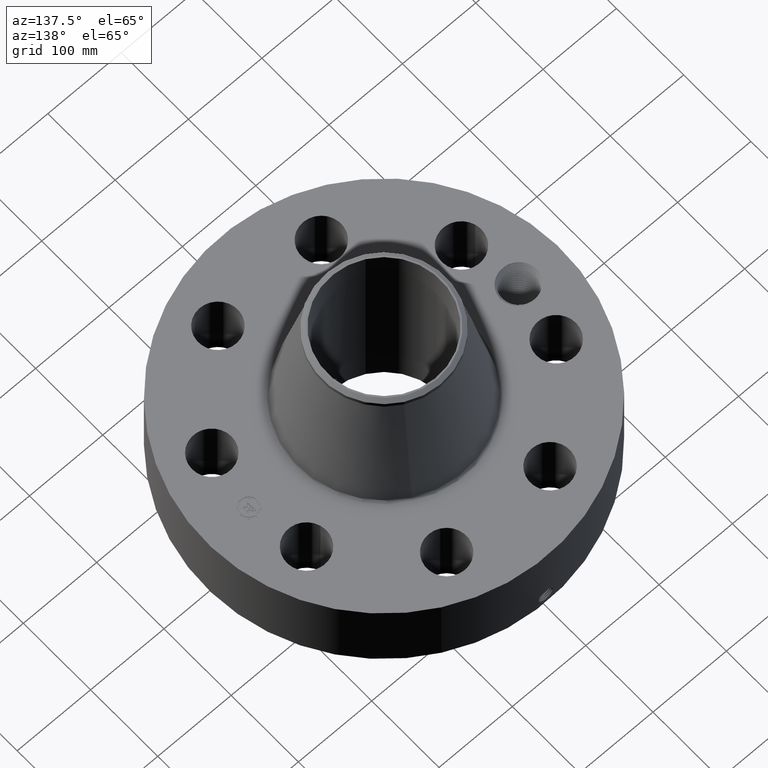
[diagram: clean part render]
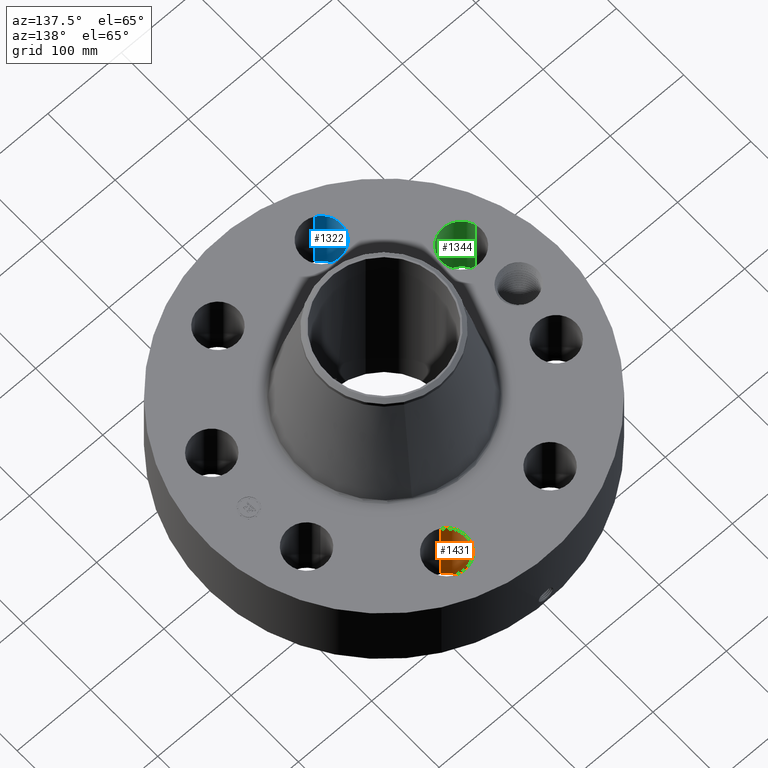
[diagram: same view with three faces highlighted in distinct colors, each labeled with its STEP entity id]
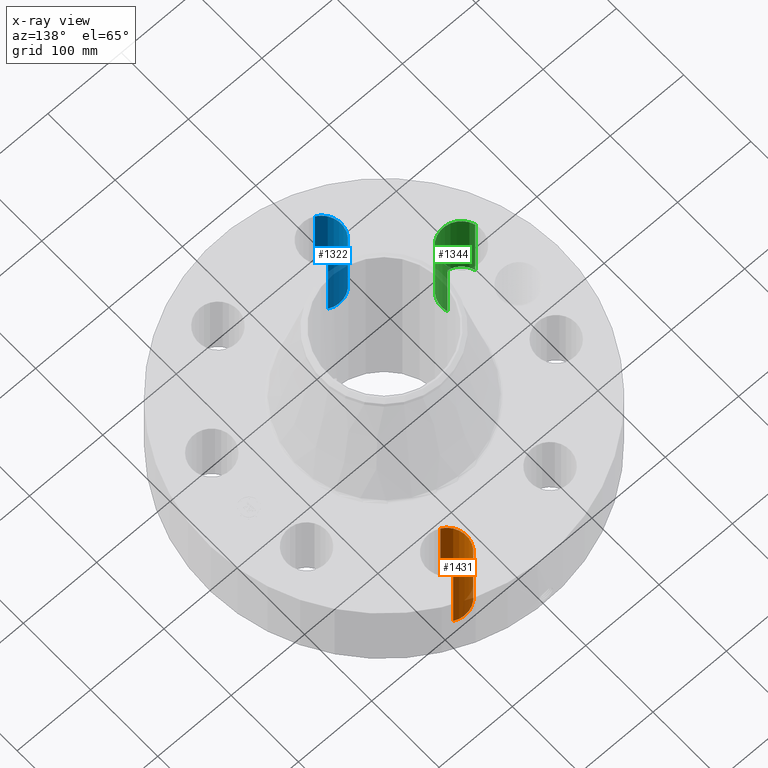
[diagram: x-ray of the same camera — body ghosted, the three highlighted faces saturated]
A machine part, auxiliary view with three faces highlighted in distinct colors.
The next image is the same camera in x-ray (body ghosted, the three faces saturated) — at least one of them is partly hidden behind the body in this view.
Their STEP definitions:

[orange] entity #1431 — the highlighted cylindrical surface (edge-blend (fillet) strip) has radius 26.924 mm, axis along (0, 0, -1).
#370=AXIS2_PLACEMENT_3D('Circle Axis2P3D',#368,#369,$) ;
#708=AXIS2_PLACEMENT_3D('Circle Axis2P3D',#706,#707,$) ;
#1413=AXIS2_PLACEMENT_3D('Cylinder Axis2P3D',#1410,#1411,#1412) ;
#368=CARTESIAN_POINT('Axis2P3D Location',(2.77445488466,6.69812661073,0.250000000001)) ;
#372=CARTESIAN_POINT('Vertex',(2.26626381374,5.76788909513,0.250000000001)) ;
#374=CARTESIAN_POINT('Vertex',(3.28264595558,7.62836412634,0.250000000001)) ;
#701=CARTESIAN_POINT('Vertex',(3.28264595558,7.62836412634,4.50000000002)) ;
#703=CARTESIAN_POINT('Vertex',(2.26626381374,5.76788909513,4.50000000002)) ;
#706=CARTESIAN_POINT('Axis2P3D Location',(2.77445488466,6.69812661073,4.50000000002)) ;
#1410=CARTESIAN_POINT('Axis2P3D Location',(2.77445488466,6.69812661073,4.49606299214)) ;
#1415=CARTESIAN_POINT('Line Origine',(2.26626381374,5.76788909513,2.37500000001)) ;
#1420=CARTESIAN_POINT('Line Origine',(3.28264595558,7.62836412634,2.37500000001)) ;
#369=DIRECTION('Axis2P3D Direction',(0.,0.,-0.0393700787402)) ;
#707=DIRECTION('Axis2P3D Direction',(0.,0.,-0.0393700787402)) ;
#1411=DIRECTION('Axis2P3D Direction',(0.,0.,-0.0393700787402)) ;
#1412=DIRECTION('Axis2P3D XDirection',(0.0188750212049,0.0345504945626,0.)) ;
#1416=DIRECTION('Vector Direction',(0.,0.,-0.0393700787402)) ;
#1421=DIRECTION('Vector Direction',(0.,0.,-0.0393700787402)) ;
#1417=VECTOR('Line Direction',#1416,0.0393700787402) ;
#1422=VECTOR('Line Direction',#1421,0.0393700787402) ;
#1426=ORIENTED_EDGE('',*,*,#1419,.F.) ;
#1427=ORIENTED_EDGE('',*,*,#376,.T.) ;
#1428=ORIENTED_EDGE('',*,*,#1424,.T.) ;
#1429=ORIENTED_EDGE('',*,*,#710,.F.) ;
#1431=ADVANCED_FACE('PartBody',(#1430),#1414,.F.) ;
#371=CIRCLE('generated circle',#370,1.06) ;
#709=CIRCLE('generated circle',#708,1.06) ;
#1414=CYLINDRICAL_SURFACE('generated cylinder',#1413,1.06) ;
#376=EDGE_CURVE('',#373,#375,#371,.T.) ;
#710=EDGE_CURVE('',#704,#702,#709,.T.) ;
#1419=EDGE_CURVE('',#373,#704,#1418,.F.) ;
#1424=EDGE_CURVE('',#375,#702,#1423,.F.) ;
#1425=EDGE_LOOP('',(#1426,#1427,#1428,#1429)) ;
#1430=FACE_OUTER_BOUND('',#1425,.T.) ;
#1418=LINE('Line',#1415,#1417) ;
#1423=LINE('Line',#1420,#1422) ;
#373=VERTEX_POINT('',#372) ;
#375=VERTEX_POINT('',#374) ;
#702=VERTEX_POINT('',#701) ;
#704=VERTEX_POINT('',#703) ;

[blue] entity #1322 — the highlighted cylindrical surface (edge-blend (fillet) strip) has radius 26.924 mm, axis along (0, -0, -1).
#307=AXIS2_PLACEMENT_3D('Circle Axis2P3D',#305,#306,$) ;
#627=AXIS2_PLACEMENT_3D('Circle Axis2P3D',#625,#626,$) ;
#1297=AXIS2_PLACEMENT_3D('Cylinder Axis2P3D',#1294,#1295,#1296) ;
#300=CARTESIAN_POINT('Vertex',(-2.26626381374,-5.76788909513,0.250000000001)) ;
#302=CARTESIAN_POINT('Vertex',(-3.28264595558,-7.62836412634,0.250000000001)) ;
#305=CARTESIAN_POINT('Axis2P3D Location',(-2.77445488466,-6.69812661073,0.250000000001)) ;
#625=CARTESIAN_POINT('Axis2P3D Location',(-2.77445488466,-6.69812661073,4.50000000002)) ;
#629=CARTESIAN_POINT('Vertex',(-3.28264595558,-7.62836412634,4.50000000002)) ;
#631=CARTESIAN_POINT('Vertex',(-2.26626381374,-5.76788909513,4.50000000002)) ;
#1294=CARTESIAN_POINT('Axis2P3D Location',(-2.77445488466,-6.69812661073,4.49606299214)) ;
#1299=CARTESIAN_POINT('Line Origine',(-2.26626381374,-5.76788909513,2.37500000001)) ;
#1304=CARTESIAN_POINT('Line Origine',(-3.28264595558,-7.62836412634,2.37500000001)) ;
#306=DIRECTION('Axis2P3D Direction',(0.,0.,-0.0393700787402)) ;
#626=DIRECTION('Axis2P3D Direction',(0.,0.,-0.0393700787402)) ;
#1295=DIRECTION('Axis2P3D Direction',(0.,-0.,-0.0393700787402)) ;
#1296=DIRECTION('Axis2P3D XDirection',(-0.0188750212049,-0.0345504945626,0.)) ;
#1300=DIRECTION('Vector Direction',(0.,0.,-0.0393700787402)) ;
#1305=DIRECTION('Vector Direction',(0.,0.,-0.0393700787402)) ;
#1301=VECTOR('Line Direction',#1300,0.0393700787402) ;
#1306=VECTOR('Line Direction',#1305,0.0393700787402) ;
#1317=ORIENTED_EDGE('',*,*,#1308,.F.) ;
#1318=ORIENTED_EDGE('',*,*,#309,.T.) ;
#1319=ORIENTED_EDGE('',*,*,#1303,.T.) ;
#1320=ORIENTED_EDGE('',*,*,#633,.F.) ;
#1322=ADVANCED_FACE('PartBody',(#1321),#1298,.F.) ;
#308=CIRCLE('generated circle',#307,1.06) ;
#628=CIRCLE('generated circle',#627,1.06) ;
#1298=CYLINDRICAL_SURFACE('generated cylinder',#1297,1.06) ;
#309=EDGE_CURVE('',#303,#301,#308,.T.) ;
#633=EDGE_CURVE('',#630,#632,#628,.T.) ;
#1303=EDGE_CURVE('',#301,#632,#1302,.F.) ;
#1308=EDGE_CURVE('',#303,#630,#1307,.F.) ;
#1316=EDGE_LOOP('',(#1317,#1318,#1319,#1320)) ;
#1321=FACE_OUTER_BOUND('',#1316,.T.) ;
#1302=LINE('Line',#1299,#1301) ;
#1307=LINE('Line',#1304,#1306) ;
#301=VERTEX_POINT('',#300) ;
#303=VERTEX_POINT('',#302) ;
#630=VERTEX_POINT('',#629) ;
#632=VERTEX_POINT('',#631) ;

[green] entity #1344 — the highlighted cylindrical surface (edge-blend (fillet) strip) has radius 26.924 mm, axis along (-0, 0, -1).
#316=AXIS2_PLACEMENT_3D('Circle Axis2P3D',#314,#315,$) ;
#654=AXIS2_PLACEMENT_3D('Circle Axis2P3D',#652,#653,$) ;
#1326=AXIS2_PLACEMENT_3D('Cylinder Axis2P3D',#1323,#1324,#1325) ;
#314=CARTESIAN_POINT('Axis2P3D Location',(-6.69812661073,-2.77445488466,0.250000000001)) ;
#318=CARTESIAN_POINT('Vertex',(-5.68100400295,-2.47602298165,0.250000000001)) ;
#320=CARTESIAN_POINT('Vertex',(-7.71524921852,-3.07288678767,0.250000000001)) ;
#647=CARTESIAN_POINT('Vertex',(-7.71524921852,-3.07288678767,4.50000000002)) ;
#649=CARTESIAN_POINT('Vertex',(-5.68100400295,-2.47602298165,4.50000000002)) ;
#652=CARTESIAN_POINT('Axis2P3D Location',(-6.69812661073,-2.77445488466,4.50000000002)) ;
#1323=CARTESIAN_POINT('Axis2P3D Location',(-6.69812661073,-2.77445488466,4.49606299214)) ;
#1328=CARTESIAN_POINT('Line Origine',(-5.68100400295,-2.47602298165,2.37500000001)) ;
#1333=CARTESIAN_POINT('Line Origine',(-7.71524921852,-3.07288678767,2.37500000001)) ;
#315=DIRECTION('Axis2P3D Direction',(0.,0.,-0.0393700787402)) ;
#653=DIRECTION('Axis2P3D Direction',(0.,0.,-0.0393700787402)) ;
#1324=DIRECTION('Axis2P3D Direction',(-0.,0.,-0.0393700787402)) ;
#1325=DIRECTION('Axis2P3D XDirection',(-0.0377775444876,-0.0110842335096,0.)) ;
#1329=DIRECTION('Vector Direction',(0.,0.,-0.0393700787402)) ;
#1334=DIRECTION('Vector Direction',(0.,0.,-0.0393700787402)) ;
#1330=VECTOR('Line Direction',#1329,0.0393700787402) ;
#1335=VECTOR('Line Direction',#1334,0.0393700787402) ;
#1339=ORIENTED_EDGE('',*,*,#1332,.F.) ;
#1340=ORIENTED_EDGE('',*,*,#322,.T.) ;
#1341=ORIENTED_EDGE('',*,*,#1337,.T.) ;
#1342=ORIENTED_EDGE('',*,*,#656,.F.) ;
#1344=ADVANCED_FACE('PartBody',(#1343),#1327,.F.) ;
#317=CIRCLE('generated circle',#316,1.06) ;
#655=CIRCLE('generated circle',#654,1.06) ;
#1327=CYLINDRICAL_SURFACE('generated cylinder',#1326,1.06) ;
#322=EDGE_CURVE('',#319,#321,#317,.T.) ;
#656=EDGE_CURVE('',#650,#648,#655,.T.) ;
#1332=EDGE_CURVE('',#319,#650,#1331,.F.) ;
#1337=EDGE_CURVE('',#321,#648,#1336,.F.) ;
#1338=EDGE_LOOP('',(#1339,#1340,#1341,#1342)) ;
#1343=FACE_OUTER_BOUND('',#1338,.T.) ;
#1331=LINE('Line',#1328,#1330) ;
#1336=LINE('Line',#1333,#1335) ;
#319=VERTEX_POINT('',#318) ;
#321=VERTEX_POINT('',#320) ;
#648=VERTEX_POINT('',#647) ;
#650=VERTEX_POINT('',#649) ;